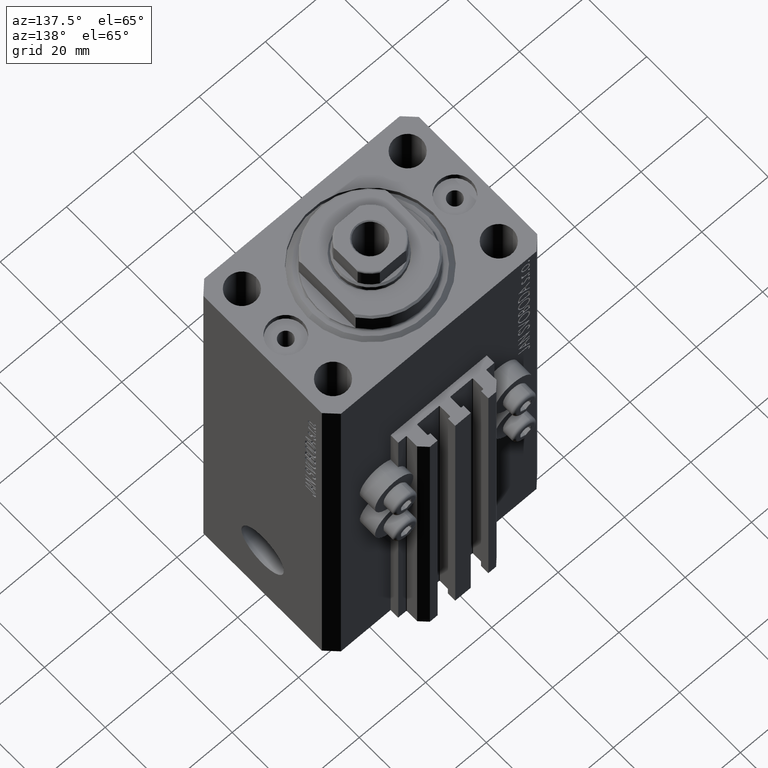
[diagram: clean part render]
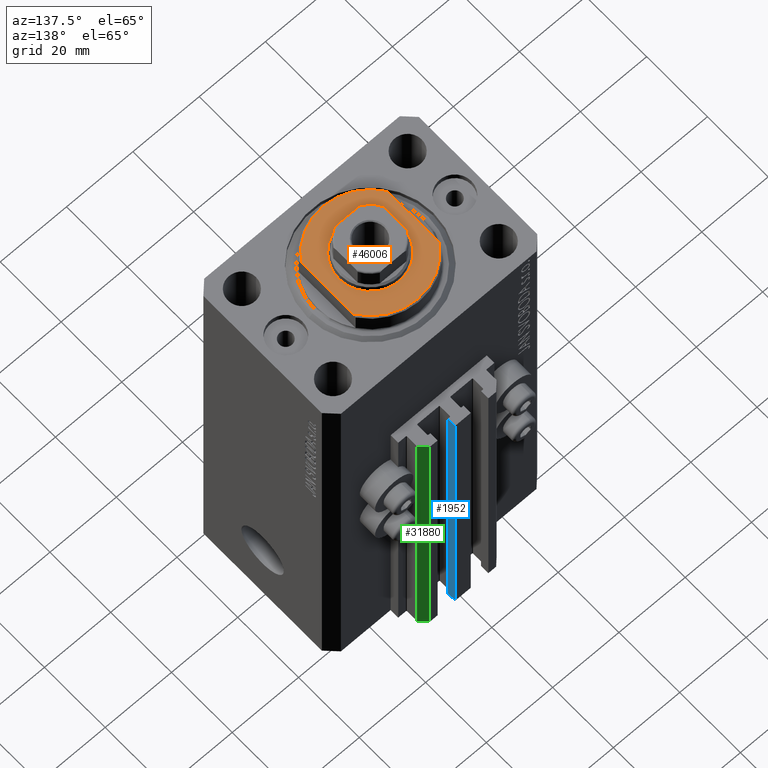
[diagram: same view with three faces highlighted in distinct colors, each labeled with its STEP entity id]
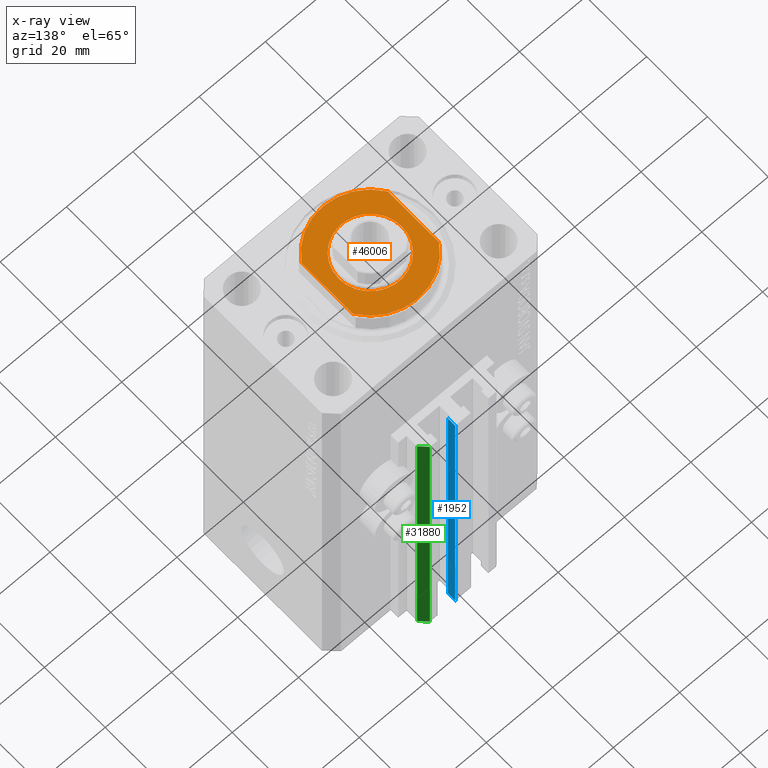
[diagram: x-ray of the same camera — body ghosted, the three highlighted faces saturated]
A machine part, auxiliary view with three faces highlighted in distinct colors.
The next image is the same camera in x-ray (body ghosted, the three faces saturated) — at least one of them is partly hidden behind the body in this view.
Their STEP definitions:

[orange] entity #46006 — the highlighted planar face has unit normal (0, 0, 1).
#91 = DIRECTION ( 'NONE',  ( 0.000000000000000000, 0.000000000000000000, -1.000000000000000000 ) ) ;
#147 = DIRECTION ( 'NONE',  ( -0.000000000000000000, -0.000000000000000000, 1.000000000000000000 ) ) ;
#614 = CARTESIAN_POINT ( 'NONE',  ( 0.000000000000000000, 0.000000000000000000, -6.500000000000000000 ) ) ;
#616 = EDGE_CURVE ( 'NONE', #2249, #12074, #15758, .T. ) ;
#1675 = PLANE ( 'NONE',  #45103 ) ;
#2249 = VERTEX_POINT ( 'NONE', #18128 ) ;
#2923 = LINE ( 'NONE', #24197, #33443 ) ;
#4178 = VERTEX_POINT ( 'NONE', #37745 ) ;
#6436 = EDGE_CURVE ( 'NONE', #20395, #4178, #2923, .T. ) ;
#6840 = CIRCLE ( 'NONE', #32778, 9.500000000000015987 ) ;
#7050 = ORIENTED_EDGE ( 'NONE', *, *, #16562, .T. ) ;
#8598 = EDGE_CURVE ( 'NONE', #12074, #2249, #6840, .T. ) ;
#9542 = DIRECTION ( 'NONE',  ( -1.000000000000000000, 0.000000000000000000, 0.000000000000000000 ) ) ;
#11328 = ORIENTED_EDGE ( 'NONE', *, *, #8598, .T. ) ;
#12074 = VERTEX_POINT ( 'NONE', #14265 ) ;
#12782 = EDGE_CURVE ( 'NONE', #29385, #41939, #42914, .T. ) ;
#14265 = CARTESIAN_POINT ( 'NONE',  ( 9.500000000000015987, 1.163414459189987457E-15, -6.500000000000000000 ) ) ;
#15017 = AXIS2_PLACEMENT_3D ( 'NONE', #18294, #147, #15645 ) ;
#15645 = DIRECTION ( 'NONE',  ( -1.000000000000000000, 0.000000000000000000, 0.000000000000000000 ) ) ;
#15758 = CIRCLE ( 'NONE', #15017, 9.500000000000015987 ) ;
#16562 = EDGE_CURVE ( 'NONE', #4178, #41939, #18437, .T. ) ;
#18128 = CARTESIAN_POINT ( 'NONE',  ( -9.500000000000015987, 0.000000000000000000, -6.500000000000000000 ) ) ;
#18294 = CARTESIAN_POINT ( 'NONE',  ( 0.000000000000000000, 0.000000000000000000, -6.500000000000000000 ) ) ;
#18437 = CIRCLE ( 'NONE', #27561, 15.50000000000003730 ) ;
#18448 = AXIS2_PLACEMENT_3D ( 'NONE', #36848, #91, #39715 ) ;
#18458 = EDGE_LOOP ( 'NONE', ( #45356, #11328 ) ) ;
#20302 = FACE_BOUND ( 'NONE', #18458, .T. ) ;
#20395 = VERTEX_POINT ( 'NONE', #26544 ) ;
#20622 = DIRECTION ( 'NONE',  ( 0.000000000000000000, -1.000000000000000000, -0.000000000000000000 ) ) ;
#23644 = FACE_OUTER_BOUND ( 'NONE', #24850, .T. ) ;
#24197 = CARTESIAN_POINT ( 'NONE',  ( 13.00000000000000000, -43.08131845707602992, -6.500000000000000000 ) ) ;
#24459 = CARTESIAN_POINT ( 'NONE',  ( -13.00000000000000000, -8.440971508067139695, -6.500000000000000000 ) ) ;
#24554 = CIRCLE ( 'NONE', #18448, 15.50000000000003730 ) ;
#24787 = DIRECTION ( 'NONE',  ( -0.000000000000000000, -1.000000000000000000, -0.000000000000000000 ) ) ;
#24850 = EDGE_LOOP ( 'NONE', ( #35232, #25430, #7050, #34604 ) ) ;
#25430 = ORIENTED_EDGE ( 'NONE', *, *, #6436, .T. ) ;
#26544 = CARTESIAN_POINT ( 'NONE',  ( 13.00000000000000000, 8.440971508067139695, -6.500000000000000000 ) ) ;
#27561 = AXIS2_PLACEMENT_3D ( 'NONE', #42477, #42254, #9542 ) ;
#28381 = CARTESIAN_POINT ( 'NONE',  ( -13.00000000000000000, -43.08131845707602992, -6.500000000000000000 ) ) ;
#29385 = VERTEX_POINT ( 'NONE', #47096 ) ;
#30643 = VECTOR ( 'NONE', #24787, 1000.000000000000000 ) ;
#32778 = AXIS2_PLACEMENT_3D ( 'NONE', #614, #33326, #44294 ) ;
#33326 = DIRECTION ( 'NONE',  ( -0.000000000000000000, -0.000000000000000000, 1.000000000000000000 ) ) ;
#33443 = VECTOR ( 'NONE', #20622, 1000.000000000000000 ) ;
#34604 = ORIENTED_EDGE ( 'NONE', *, *, #12782, .F. ) ;
#35232 = ORIENTED_EDGE ( 'NONE', *, *, #45597, .T. ) ;
#35983 = CARTESIAN_POINT ( 'NONE',  ( 0.000000000000000000, 0.000000000000000000, -6.500000000000000000 ) ) ;
#36848 = CARTESIAN_POINT ( 'NONE',  ( 0.000000000000000000, 0.000000000000000000, -6.500000000000000000 ) ) ;
#37745 = CARTESIAN_POINT ( 'NONE',  ( 13.00000000000000000, -8.440971508067139695, -6.500000000000000000 ) ) ;
#39715 = DIRECTION ( 'NONE',  ( -1.000000000000000000, 0.000000000000000000, 0.000000000000000000 ) ) ;
#41939 = VERTEX_POINT ( 'NONE', #24459 ) ;
#42254 = DIRECTION ( 'NONE',  ( 0.000000000000000000, 0.000000000000000000, -1.000000000000000000 ) ) ;
#42477 = CARTESIAN_POINT ( 'NONE',  ( 0.000000000000000000, 0.000000000000000000, -6.500000000000000000 ) ) ;
#42914 = LINE ( 'NONE', #28381, #30643 ) ;
#43121 = DIRECTION ( 'NONE',  ( 0.000000000000000000, 0.000000000000000000, -1.000000000000000000 ) ) ;
#44294 = DIRECTION ( 'NONE',  ( -1.000000000000000000, 0.000000000000000000, 0.000000000000000000 ) ) ;
#45103 = AXIS2_PLACEMENT_3D ( 'NONE', #35983, #43121, #45829 ) ;
#45356 = ORIENTED_EDGE ( 'NONE', *, *, #616, .T. ) ;
#45597 = EDGE_CURVE ( 'NONE', #29385, #20395, #24554, .T. ) ;
#45829 = DIRECTION ( 'NONE',  ( -1.000000000000000000, 0.000000000000000000, -0.000000000000000000 ) ) ;
#46006 = ADVANCED_FACE ( 'NONE', ( #20302, #23644 ), #1675, .T. ) ;
#47096 = CARTESIAN_POINT ( 'NONE',  ( -13.00000000000000000, 8.440971508067139695, -6.500000000000000000 ) ) ;

[blue] entity #1952 — the highlighted planar face has unit normal (1, 0, 0).
#1952 = ADVANCED_FACE ( 'NONE', ( #30385 ), #12233, .T. ) ;
#3747 = LINE ( 'NONE', #15447, #34980 ) ;
#5088 = EDGE_CURVE ( 'NONE', #40057, #43002, #22898, .T. ) ;
#5548 = DIRECTION ( 'NONE',  ( 0.000000000000000000, 0.000000000000000000, -1.000000000000000000 ) ) ;
#7403 = EDGE_CURVE ( 'NONE', #15997, #43002, #37047, .T. ) ;
#7953 = CARTESIAN_POINT ( 'NONE',  ( 2.349999999999999645, 30.49999999999949907, -125.0000000000000000 ) ) ;
#9398 = EDGE_LOOP ( 'NONE', ( #23872, #20101, #36654, #31024 ) ) ;
#10535 = VECTOR ( 'NONE', #12630, 1000.000000000000000 ) ;
#12045 = CARTESIAN_POINT ( 'NONE',  ( 2.349999999999999645, 28.09999999999950049, -33.00000000000000000 ) ) ;
#12233 = PLANE ( 'NONE',  #40084 ) ;
#12630 = DIRECTION ( 'NONE',  ( 0.000000000000000000, 1.000000000000000000, 0.000000000000000000 ) ) ;
#15447 = CARTESIAN_POINT ( 'NONE',  ( 2.349999999999999645, 28.09999999999950049, -125.0000000000000000 ) ) ;
#15997 = VERTEX_POINT ( 'NONE', #7953 ) ;
#16733 = VECTOR ( 'NONE', #33458, 1000.000000000000000 ) ;
#18910 = CARTESIAN_POINT ( 'NONE',  ( 2.349999999999999645, 30.49999999999949907, -125.0000000000000000 ) ) ;
#20101 = ORIENTED_EDGE ( 'NONE', *, *, #25483, .F. ) ;
#22002 = CARTESIAN_POINT ( 'NONE',  ( 2.349999999999999645, 28.09999999999950049, -125.0000000000000000 ) ) ;
#22045 = CARTESIAN_POINT ( 'NONE',  ( 2.349999999999999645, 30.49999999999949907, -33.00000000000000000 ) ) ;
#22898 = LINE ( 'NONE', #44834, #10535 ) ;
#23634 = VERTEX_POINT ( 'NONE', #22002 ) ;
#23872 = ORIENTED_EDGE ( 'NONE', *, *, #5088, .F. ) ;
#23975 = EDGE_CURVE ( 'NONE', #23634, #15997, #3747, .T. ) ;
#25483 = EDGE_CURVE ( 'NONE', #23634, #40057, #31050, .T. ) ;
#26803 = CARTESIAN_POINT ( 'NONE',  ( 2.349999999999999645, 28.09999999999950049, -125.0000000000000000 ) ) ;
#30385 = FACE_OUTER_BOUND ( 'NONE', #9398, .T. ) ;
#31024 = ORIENTED_EDGE ( 'NONE', *, *, #7403, .T. ) ;
#31050 = LINE ( 'NONE', #45587, #34331 ) ;
#33458 = DIRECTION ( 'NONE',  ( 0.000000000000000000, 0.000000000000000000, 1.000000000000000000 ) ) ;
#34331 = VECTOR ( 'NONE', #38443, 1000.000000000000000 ) ;
#34980 = VECTOR ( 'NONE', #36931, 1000.000000000000000 ) ;
#36654 = ORIENTED_EDGE ( 'NONE', *, *, #23975, .T. ) ;
#36931 = DIRECTION ( 'NONE',  ( 0.000000000000000000, 1.000000000000000000, 0.000000000000000000 ) ) ;
#37047 = LINE ( 'NONE', #18910, #16733 ) ;
#38443 = DIRECTION ( 'NONE',  ( 0.000000000000000000, 0.000000000000000000, 1.000000000000000000 ) ) ;
#40057 = VERTEX_POINT ( 'NONE', #12045 ) ;
#40084 = AXIS2_PLACEMENT_3D ( 'NONE', #26803, #45171, #5548 ) ;
#43002 = VERTEX_POINT ( 'NONE', #22045 ) ;
#44834 = CARTESIAN_POINT ( 'NONE',  ( 2.349999999999999645, 28.09999999999950049, -33.00000000000000000 ) ) ;
#45171 = DIRECTION ( 'NONE',  ( 1.000000000000000000, 0.000000000000000000, 0.000000000000000000 ) ) ;
#45587 = CARTESIAN_POINT ( 'NONE',  ( 2.349999999999999645, 28.09999999999950049, -125.0000000000000000 ) ) ;

[green] entity #31880 — the highlighted planar face has unit normal (0.7071, 0.7071, 0).
#497 = EDGE_CURVE ( 'NONE', #5487, #28723, #32394, .T. ) ;
#1283 = VERTEX_POINT ( 'NONE', #33369 ) ;
#1603 = CARTESIAN_POINT ( 'NONE',  ( 12.00000000000000178, 28.49999999999950973, -125.0000000000000000 ) ) ;
#3254 = DIRECTION ( 'NONE',  ( 0.000000000000000000, 0.000000000000000000, 1.000000000000000000 ) ) ;
#5466 = ORIENTED_EDGE ( 'NONE', *, *, #497, .F. ) ;
#5487 = VERTEX_POINT ( 'NONE', #38031 ) ;
#6000 = VECTOR ( 'NONE', #41664, 1000.000000000000000 ) ;
#8746 = VERTEX_POINT ( 'NONE', #38331 ) ;
#9232 = LINE ( 'NONE', #1603, #24397 ) ;
#9893 = AXIS2_PLACEMENT_3D ( 'NONE', #41992, #20285, #34832 ) ;
#10011 = VECTOR ( 'NONE', #32095, 1000.000000000000000 ) ;
#10181 = CARTESIAN_POINT ( 'NONE',  ( 12.00000000000000178, 28.49999999999950973, -125.0000000000000000 ) ) ;
#12401 = ORIENTED_EDGE ( 'NONE', *, *, #32168, .T. ) ;
#12562 = CARTESIAN_POINT ( 'NONE',  ( 12.00000000000000178, 28.49999999999950973, -33.00000000000000000 ) ) ;
#16243 = FACE_OUTER_BOUND ( 'NONE', #44357, .T. ) ;
#19564 = ORIENTED_EDGE ( 'NONE', *, *, #44747, .T. ) ;
#20002 = DIRECTION ( 'NONE',  ( -0.7071067811865507924, 0.7071067811865441310, 0.000000000000000000 ) ) ;
#20285 = DIRECTION ( 'NONE',  ( 0.7071067811865442421, 0.7071067811865509034, -0.000000000000000000 ) ) ;
#24037 = EDGE_CURVE ( 'NONE', #28723, #1283, #26641, .T. ) ;
#24397 = VECTOR ( 'NONE', #20002, 1000.000000000000000 ) ;
#26641 = LINE ( 'NONE', #12562, #6000 ) ;
#28723 = VERTEX_POINT ( 'NONE', #39408 ) ;
#31880 = ADVANCED_FACE ( 'NONE', ( #16243 ), #45570, .T. ) ;
#32095 = DIRECTION ( 'NONE',  ( 0.000000000000000000, 0.000000000000000000, 1.000000000000000000 ) ) ;
#32168 = EDGE_CURVE ( 'NONE', #5487, #8746, #9232, .T. ) ;
#32337 = CARTESIAN_POINT ( 'NONE',  ( 9.999999999999994671, 30.49999999999949551, -125.0000000000000000 ) ) ;
#32394 = LINE ( 'NONE', #10181, #37875 ) ;
#33369 = CARTESIAN_POINT ( 'NONE',  ( 9.999999999999994671, 30.49999999999949551, -33.00000000000000000 ) ) ;
#34832 = DIRECTION ( 'NONE',  ( -0.7071067811865507924, 0.7071067811865441310, 0.000000000000000000 ) ) ;
#37875 = VECTOR ( 'NONE', #3254, 1000.000000000000000 ) ;
#38031 = CARTESIAN_POINT ( 'NONE',  ( 12.00000000000000178, 28.49999999999950973, -125.0000000000000000 ) ) ;
#38331 = CARTESIAN_POINT ( 'NONE',  ( 9.999999999999994671, 30.49999999999949551, -125.0000000000000000 ) ) ;
#39408 = CARTESIAN_POINT ( 'NONE',  ( 12.00000000000000178, 28.49999999999950973, -33.00000000000000000 ) ) ;
#39468 = LINE ( 'NONE', #32337, #10011 ) ;
#41664 = DIRECTION ( 'NONE',  ( -0.7071067811865507924, 0.7071067811865441310, 0.000000000000000000 ) ) ;
#41992 = CARTESIAN_POINT ( 'NONE',  ( 12.00000000000000178, 28.49999999999950973, -125.0000000000000000 ) ) ;
#44357 = EDGE_LOOP ( 'NONE', ( #45335, #5466, #12401, #19564 ) ) ;
#44747 = EDGE_CURVE ( 'NONE', #8746, #1283, #39468, .T. ) ;
#45335 = ORIENTED_EDGE ( 'NONE', *, *, #24037, .F. ) ;
#45570 = PLANE ( 'NONE',  #9893 ) ;